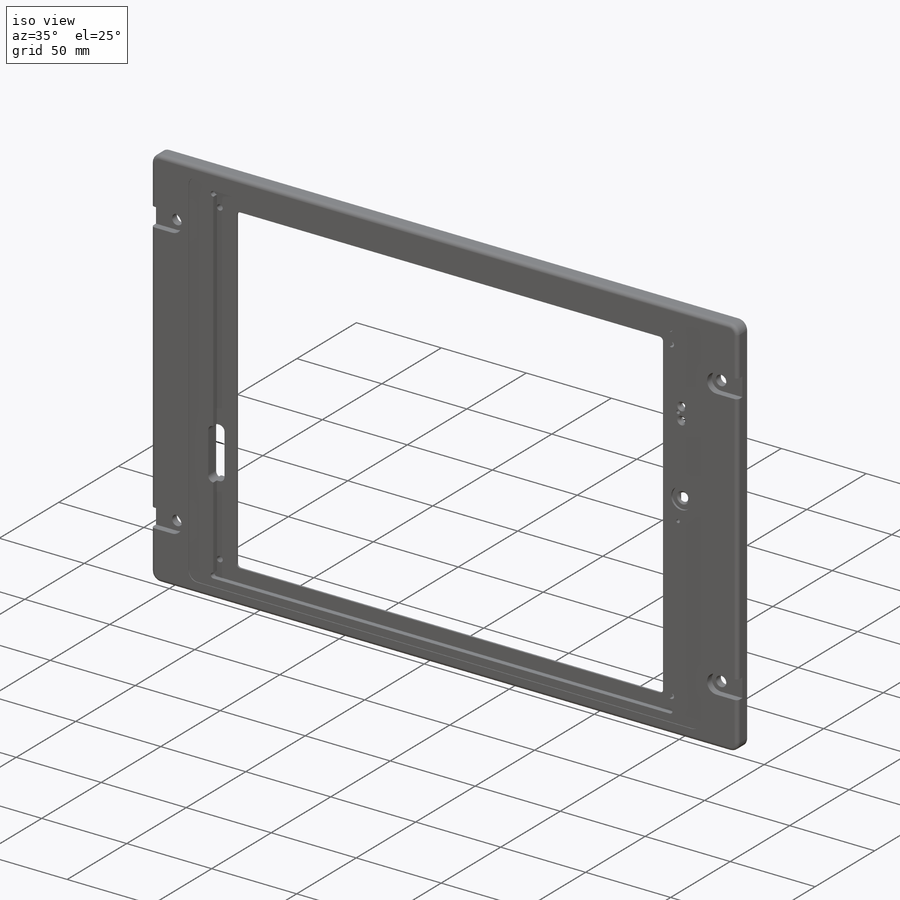
[diagram: iso view]
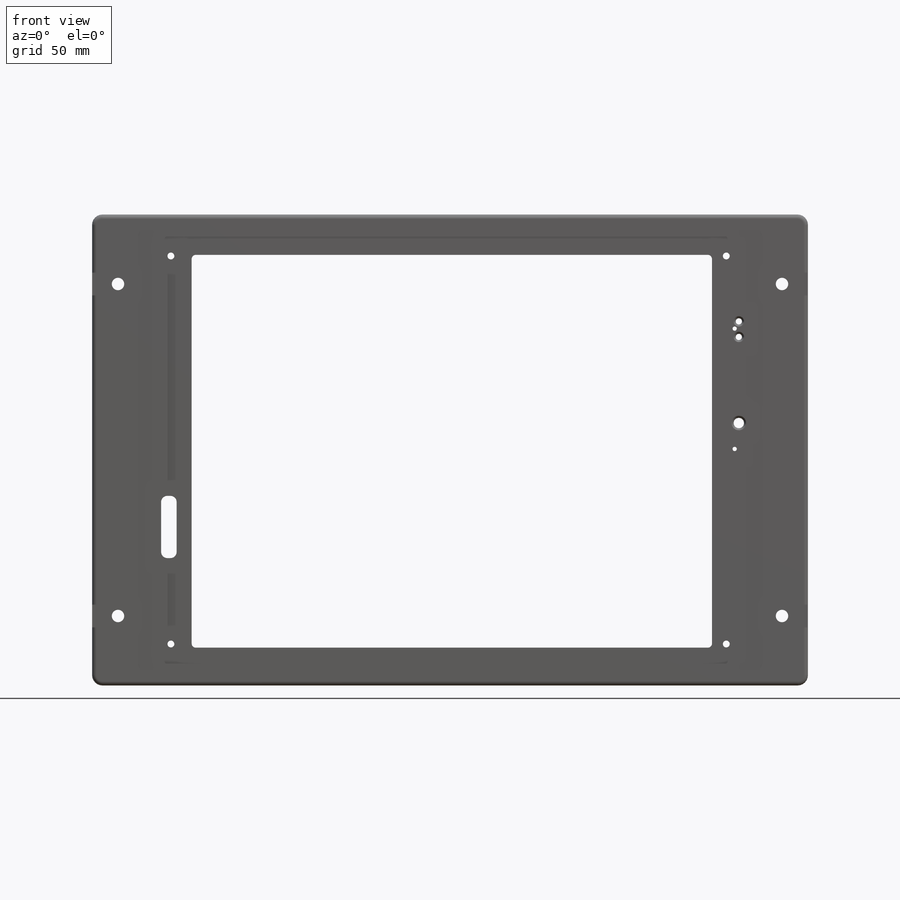
[diagram: front view]
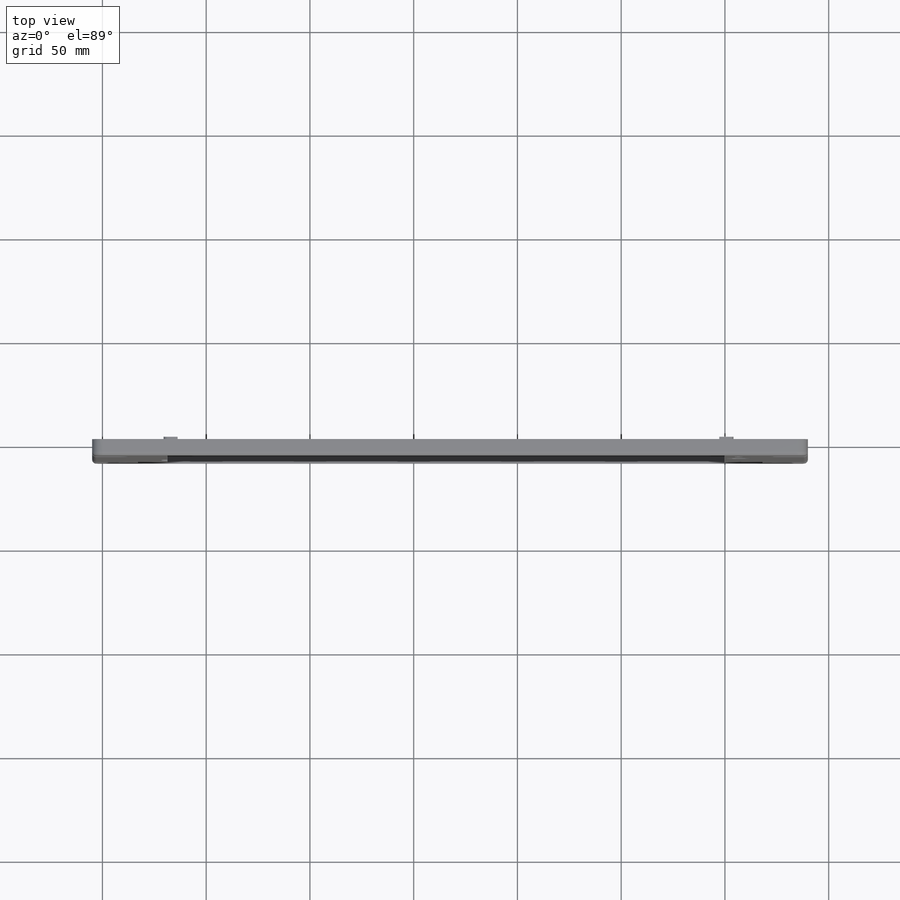
[diagram: top view]
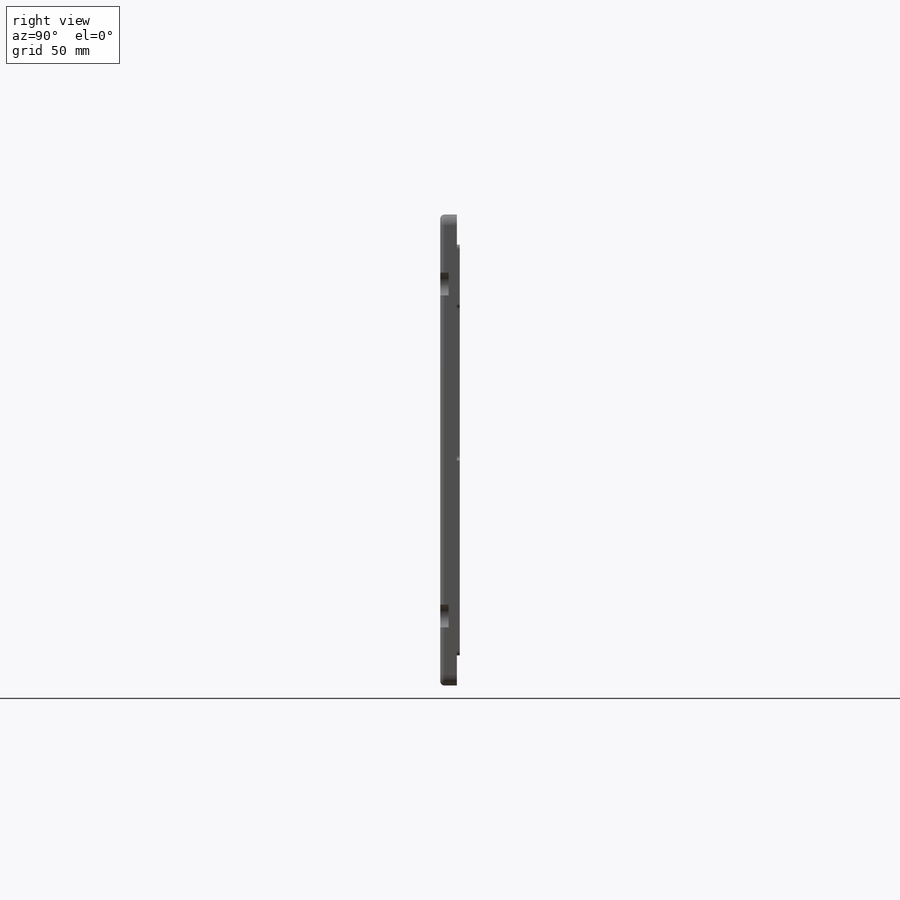
[diagram: right view]
SOLIDWORKS PART (.sldprt)
format: sldprt  version: not decoded by parser v0  size: 1,990,144 bytes
history: native  units: mm
features: sketch x53, cut_extrude x33, thread x30, fillet x6, hole x6, extrude x4, plane x3, material x1, chamfer x1 (+11 scaffold rows collapsed)
feature tree (148):
  scaffold x11  (default folders/planes/origin — collapsed)
  material  "1060 Legierung"
  plane  "Vorne"
  plane  "Oben"
  plane  "Rechts"
  sketch  "Skizze1"
  sketch  "Skizze2"
  extrude  "Linear austragen1"  Depth=8mm
  sketch  "Skizze3"  dims[c1.D1=5.0mm c1.D5=5.0mm c1.D2=22.0mm c1.D3=22.0mm c2.D1=6.0mm c2.D4=6.0mm]
  cut_extrude  "Schnitt-Linear austragen1"  Depth=0.35mm
  sketch  "Skizze4"
  cut_extrude  "Schnitt-Linear austragen2"  Depth=3mm
  sketch  "Skizze5"  dims[c1.D1=3.0mm c1.D5=5.0mm c2.D1=320.0mm c2.D2=160.0mm c2.D3=33.5mm c2.D4=12.5mm]
  cut_extrude  "Schnitt-Linear austragen3"  [1 undecoded]
  sketch  "Skizze6"
  cut_extrude  "Schnitt-Linear austragen4"  Depth=3mm
  sketch  "Skizze9"
  sketch  "Skizze10"
  cut_extrude  "Schnitt-Linear austragen5"  Depth=1mm
  sketch  "Skizze11"  dims[D1=1.0mm]
  cut_extrude  "Schnitt-Linear austragen6"  Depth=2.8mm
  sketch  "Skizze12"  dims[D1=0.0mm]
  cut_extrude  "Schnitt-Linear austragen7"  Depth=0.3mm
  sketch  "Skizze13"  dims[D1=1.5mm D2=1.5mm D3=2.0mm D4=2.0mm]
  cut_extrude  "Schnitt-Linear austragen8"  Depth=1.65mm
  sketch  "Skizze29"  dims[D1=0.0mm]
  extrude  "Linear austragen2"  Depth=1.65mm
  fillet  "Verrundung1"  Radius=2mm
  fillet  "Verrundung2"  Radius=2mm
  sketch  "Skizze15"
  cut_extrude  "Schnitt-Linear austragen10"  Depth=2.6mm
  hole  "M3 Gewindekernloch1"  Diameter=2.5mm Depth=6mm
  sketch  "Skizze17"
  sketch  "Skizze16"  dims[hole-wizard template sketch: 47 standard entries collapsed; hole parameters kept: c15.Bohrungstiefe=6.0mm c15.D3=~14.816244mm c15.Spitzenwinkel=120.0deg]
  thread  "Bohrungsgewinde6"  Diameter=0.8mm  [1 undecoded]
  thread  "Bohrungsgewinde7"  Diameter=0.8mm  [1 undecoded]
  thread  "Bohrungsgewinde8"  Diameter=0.8mm  [1 undecoded]
  thread  "Bohrungsgewinde9"  Diameter=0.8mm  [1 undecoded]
  thread  "Bohrungsgewinde10"  Diameter=0.8mm  [1 undecoded]
  thread  "Bohrungsgewinde11"  Diameter=0.8mm  [1 undecoded]
  sketch  "Skizze23"  dims[D1=10.0mm D2=5.0mm]
  cut_extrude  "Schnitt-Linear austragen12"  Depth=0.0001mm
  sketch  "Skizze27"  dims[D1=6.0mm]
  cut_extrude  "Schnitt-Linear austragen17"  [1 undecoded]
  sketch  "Skizze28"  dims[D1=11.0mm]
  cut_extrude  "Schnitt-Linear austragen18"  Depth=4mm
  hole  "M3 Gewindekernloch2"  Diameter=2.5mm Depth=4mm
  sketch  "Skizze31"
  sketch  "Skizze30"  dims[hole-wizard template sketch: 47 standard entries collapsed; hole parameters kept: c15.Bohrungstiefe=4.0mm c15.D3=~14.816244mm c15.Spitzenwinkel=120.0deg]
  thread  "Bohrungsgewinde17"  Diameter=3.5mm  [1 undecoded]
  thread  "Bohrungsgewinde18"  Diameter=3.5mm  [1 undecoded]
  thread  "Bohrungsgewinde19"  Diameter=3.5mm  [1 undecoded]
  thread  "Bohrungsgewinde20"  Diameter=3.5mm  [1 undecoded]
  thread  "Bohrungsgewinde21"  Diameter=3.5mm  [1 undecoded]
  thread  "Bohrungsgewinde22"  Diameter=3.5mm  [1 undecoded]
  sketch  "Skizze34"  dims[c1.D1=1.0mm c1.D2=1.0mm c1.D3=1.0mm c1.D4=1.0mm c2.D1=247.76mm c2.D2=186.32mm c2.D3=19.74mm c2.D4=49.5mm]
  cut_extrude  "Schnitt-Linear austragen19"  [1 undecoded]
  sketch  "Skizze35"  dims[c1.D1=1.0mm c1.D2=1.0mm c1.D3=1.0mm c1.D4=1.0mm c2.D1=~208.317852mm]
  cut_extrude  "Schnitt-Linear austragen20"  Depth=4.2mm
  sketch  "Skizze36"  dims[D1=4.0mm D2=~3.112143mm]
  cut_extrude  "Schnitt-Linear austragen21"  [1 undecoded]
  hole  "M4 Gewindekernloch1"  Diameter=3.3mm Depth=11.5mm
  sketch  "Skizze39"  dims[c1.D1=35.5mm c1.D2=3.5mm c1.D3=3.5mm c1.D4=156.0mm c2.D1=20.0mm c2.D4=20.0mm]
  sketch  "Skizze38"  dims[hole-wizard template sketch: 46 standard entries collapsed; hole parameters kept: c15.Bohrerdurchmesser=3.3mm c15.Bohrungstiefe=11.5mm c15.D3=~14.816244mm c15.Spitzenwinkel=118.0deg]
  thread  "Bohrungsgewinde35"  Diameter=4.8mm  [1 undecoded]
  thread  "Bohrungsgewinde36"  Diameter=6mm  [1 undecoded]
  thread  "Bohrungsgewinde37"  Diameter=4.8mm  [1 undecoded]
  thread  "Bohrungsgewinde38"  Diameter=6mm  [1 undecoded]
  sketch  "Skizze40"  dims[c1.D1=43.5mm c1.D2=65.0mm c1.D3=20.0mm c1.D4=20.3mm c2.D2=1.5mm c2.D3=19.5mm c2.D5=8.5mm c2.D6=10.0mm]
  cut_extrude  "Schnitt-Linear austragen23"  Depth=4.7mm
  sketch  "Skizze41"  dims[D1=3.0mm D2=30.0mm D3=70.5mm D4=35.0mm]
  sketch  "Skizze43"  dims[D1=3.0mm D2=8.0mm D3=7.5mm D4=13.0mm]
  cut_extrude  "Schnitt-Linear austragen27"  Depth=10mm
  sketch  "Skizze44"  dims[D1=5.0mm]
  cut_extrude  "Schnitt-Linear austragen28"  [1 undecoded]
  sketch  "Skizze45"  dims[D1=12.2mm]
  cut_extrude  "Schnitt-Linear austragen29"  Depth=1.2mm
  chamfer  "Fase1"  Distance=1mm Angle=45deg
  sketch  "Skizze46"  dims[D1=5.0mm]
  cut_extrude  "Schnitt-Linear austragen30"  Depth=2.5mm
  sketch  "Skizze47"  dims[D1=10.0mm]
  cut_extrude  "Schnitt-Linear austragen31"  Depth=2mm
  fillet  "Verrundung3"  Radius=2mm
  sketch  "Skizze48"
  cut_extrude  "Schnitt-Linear austragen33"  [1 undecoded]
  fillet  "Verrundung4"  Radius=2mm
  sketch  "Skizze50"  dims[c1.D5=1.5mm c1.D1=2.0mm c1.D2=2.0mm c1.D3=2.0mm c1.D4=2.0mm c2.D1=7.5mm]
  cut_extrude  "Schnitt-Linear austragen35"  Depth=2.5mm
  hole  "M2.5 Gewindekernloch1"  [1 undecoded]
  sketch  "Skizze52"  dims[D1=35.3mm]
  thread  "Bohrungsgewinde23"  Diameter=2.5mm  [1 undecoded]
  thread  "Bohrungsgewinde24"  Diameter=2.5mm  [1 undecoded]
  sketch  "Skizze51"  dims[hole-wizard template sketch: 59 standard entries collapsed; hole parameters kept: c18.Bohrerdurchmesser=2.05mm c18.Bohrungstiefe=4.65mm]
  sketch  "Skizze53"  dims[D1=0.0mm D2=0.0mm]
  extrude  "Aufsatz-Linear austragen1"  [1 undecoded]
  sketch  "Skizze55"  dims[c1.D1=1.0mm c1.D2=1.0mm c1.D3=1.0mm c1.D4=1.0mm c2.D1=1.0mm c2.D2=1.0mm c2.D3=1.0mm c2.D4=1.0mm c3.D1=268.6mm c3.D2=206.0mm c3.D3=1.0mm c3.D4=1.0mm c4.D3=1.0mm c4.D4=1.0mm c5.D3=13.23mm c5.D4=9.34mm]
  cut_extrude  "Schnitt-Linear austragen36"  Depth=3mm
  sketch  "Skizze56"  dims[D1=3.0mm]
  cut_extrude  "Schnitt-Linear austragen37"  [1 undecoded]
  sketch  "Skizze57"  dims[c1.D1=0.5mm c1.D2=0.5mm c1.D3=0.5mm c1.D4=0.5mm c2.D1=5.0mm c2.D2=8.25mm c2.D3=8.24mm c2.D4=9.44mm c3.D1=261.03mm]
  cut_extrude  "Schnitt-Linear austragen38"  Depth=5mm
  sketch  "Skizze58"  dims[D1=3.0mm]
  cut_extrude  "Schnitt-Linear austragen39"  [1 undecoded]
  sketch  "Skizze59"  dims[D1=1.5mm D2=1.5mm]
  cut_extrude  "Schnitt-Linear austragen40"  [1 undecoded]
  fillet  "Verrundung5"  Radius=2mm
  sketch  "Skizze74"  dims[D1=3.0mm D2=4.0mm D3=4.0mm D4=34.5mm]
  cut_extrude  "Schnitt-Linear austragen46"  [1 undecoded]
  sketch  "Skizze75"  dims[D2=3.0mm D1=4.5mm]
  cut_extrude  "Schnitt-Linear austragen47"  [1 undecoded]
  sketch  "Skizze76"
  cut_extrude  "Schnitt-Linear austragen48"  [1 undecoded]
  sketch  "Skizze77"
  cut_extrude  "Schnitt-Linear austragen49"  [1 undecoded]
  sketch  "Skizze78"  dims[D3=2.0mm D2=6.0mm D1=0.0mm]
  extrude  "Aufsatz-Linear austragen2"  [1 undecoded]
  fillet  "Verrundung6"  Radius=2mm
  hole  "M2.5 Gewindebohrung1"  Diameter=2.05mm Depth=5mm
  sketch  "Skizze80"
  sketch  "Skizze79"  dims[hole-wizard template sketch: 46 standard entries collapsed; hole parameters kept: c15.Bohrerdurchmesser=2.05mm c15.Bohrungstiefe=5.0mm c15.D3=~14.816244mm c15.Spitzenwinkel=118.0deg]
  thread  "Bohrungsgewinde25"  Diameter=4mm  [1 undecoded]
  thread  "Bohrungsgewinde26"  Diameter=4mm  [1 undecoded]
  thread  "Bohrungsgewinde27"  Diameter=4mm  [1 undecoded]
  thread  "Bohrungsgewinde28"  Diameter=4mm  [1 undecoded]
  thread  "Bohrungsgewinde29"  Diameter=4mm  [1 undecoded]
  thread  "Bohrungsgewinde30"  Diameter=4mm  [1 undecoded]
  thread  "Bohrungsgewinde31"  Diameter=4mm  [1 undecoded]
  thread  "Bohrungsgewinde32"  Diameter=4mm  [1 undecoded]
  thread  "Bohrungsgewinde33"  Diameter=4mm  [1 undecoded]
  thread  "Bohrungsgewinde34"  Diameter=4mm  [1 undecoded]
  sketch  "Skizze81"  dims[D5=2.0mm D1=1.5mm D2=1.5mm D3=1.5mm D4=1.5mm]
  cut_extrude  "Schnitt-Linear austragen50"  [1 undecoded]
  sketch  "Skizze82"  dims[D1=8.0mm]
  hole  "M4 Gewindebohrung1"  Diameter=3.3mm Depth=11.5mm
  sketch  "Skizze85"
  sketch  "Skizze84"  dims[hole-wizard template sketch: 46 standard entries collapsed; hole parameters kept: c15.Bohrerdurchmesser=3.3mm c15.Bohrungstiefe=11.5mm c15.D3=~14.816244mm c15.Spitzenwinkel=118.0deg]
  thread  "Bohrungsgewinde39"  Diameter=6mm  [1 undecoded]
  thread  "Bohrungsgewinde40"  Diameter=6mm  [1 undecoded]
decode coverage: 102 of 133 modeling features carry decoded parameters
note: ~ marks probable driven/reference dimensions
note: 47 parameter values undecoded
summary: no parameter record found for 17 features; Diameter pulled from absorbed wizard sketch
note: suppression state not decoded; provenance and decode notes live in map.json
